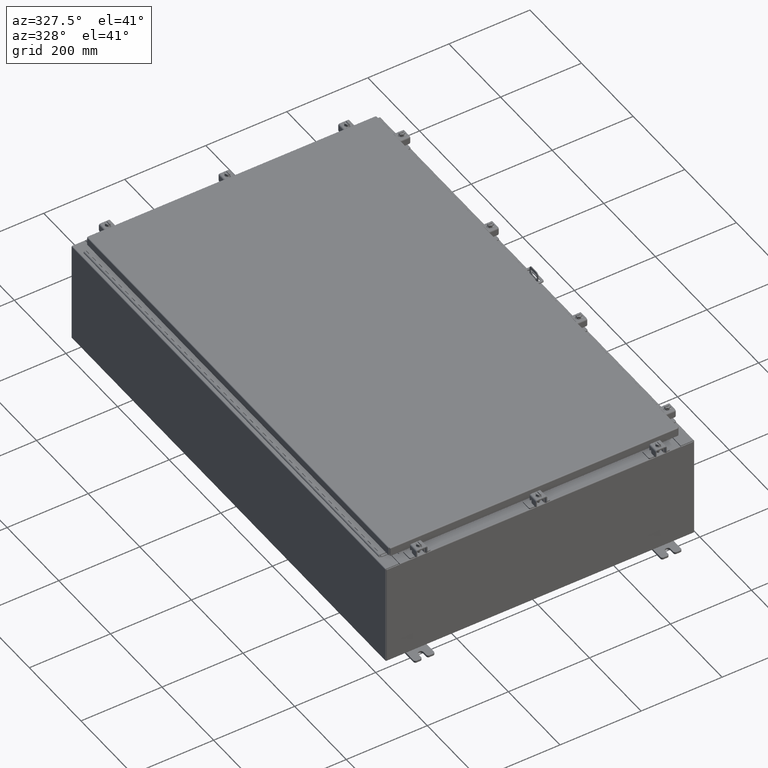
[diagram: clean part render]
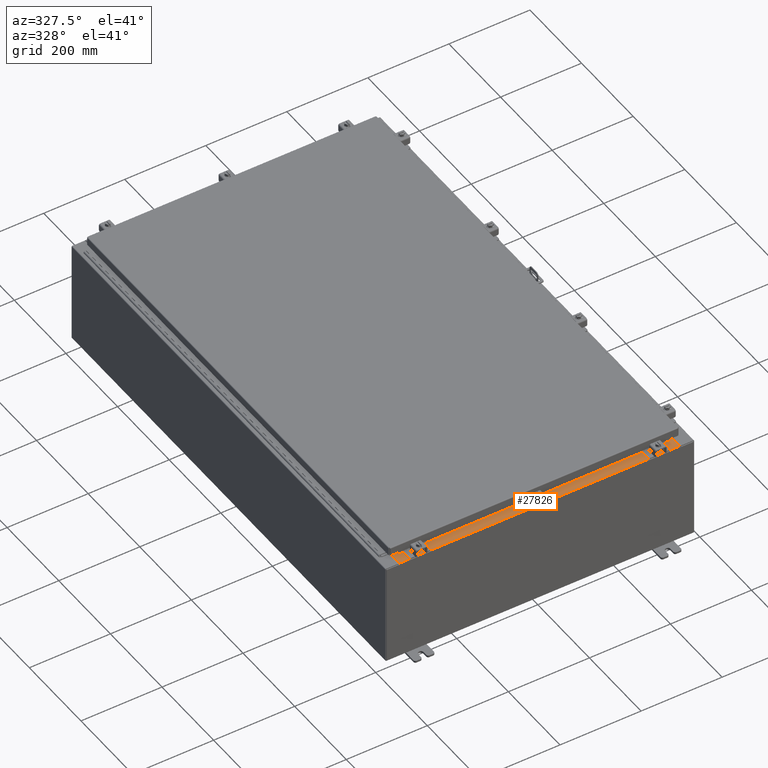
[diagram: same view with one face highlighted and labeled with its STEP entity id]
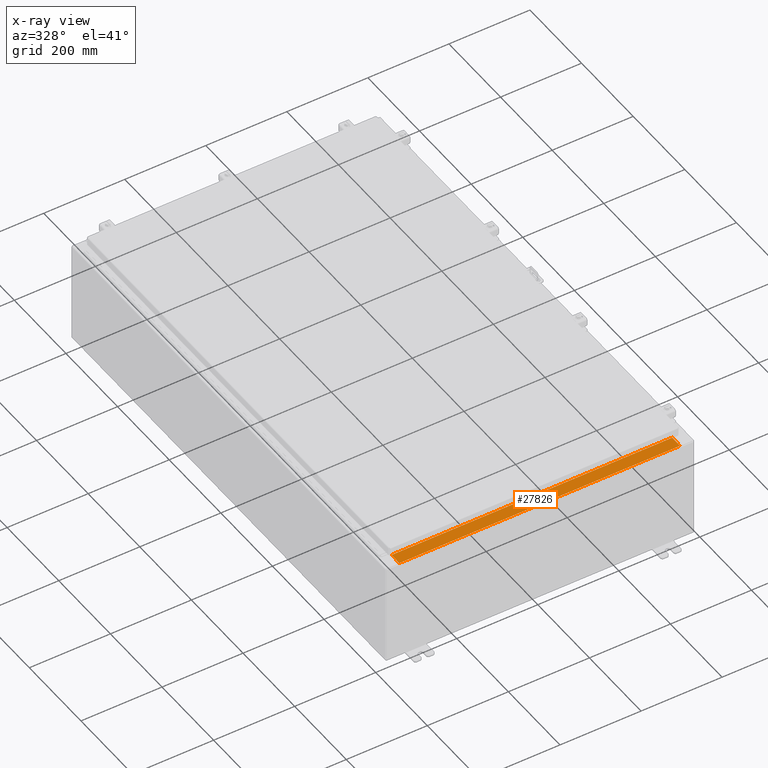
[diagram: x-ray of the same camera — body ghosted, the highlighted face saturated]
A machine part, auxiliary view. The second image highlights one B-rep face of the part: STEP entity #27826.
The next image is the same camera in x-ray: the body ghosted, the highlighted face saturated — about 0% of this face is hidden behind the body in this view.
In plain terms, the highlighted planar face has unit normal (-0, -0, 1).
Its self-contained STEP definition (entity closure, byte-faithful):
#1842 = EDGE_CURVE ( 'NONE', #40998, #15340, #34407, .T. ) ;
#6824 = VECTOR ( 'NONE', #11689, 39.37007874015748100 ) ;
#7242 = VERTEX_POINT ( 'NONE', #12935 ) ;
#9214 = ORIENTED_EDGE ( 'NONE', *, *, #27134, .F. ) ;
#11689 = DIRECTION ( 'NONE',  ( -1.000000000000000000, -3.626514188665738000E-016, -9.992007221626408900E-016 ) ) ;
#11833 = LINE ( 'NONE', #38471, #33440 ) ;
#12935 = CARTESIAN_POINT ( 'NONE',  ( -13.63720000000000400, -0.08770000000000026400, 4.999999999999988500 ) ) ;
#14134 = DIRECTION ( 'NONE',  ( -3.225867722578196700E-016, -1.000000000000000000, 3.767692204910442100E-015 ) ) ;
#15300 = VECTOR ( 'NONE', #33399, 39.37007874015748100 ) ;
#15340 = VERTEX_POINT ( 'NONE', #42845 ) ;
#17595 = LINE ( 'NONE', #40082, #6824 ) ;
#19007 = AXIS2_PLACEMENT_3D ( 'NONE', #24161, #20233, #48677 ) ;
#19821 = ORIENTED_EDGE ( 'NONE', *, *, #30159, .T. ) ;
#20233 = DIRECTION ( 'NONE',  ( 9.992007221626408900E-016, 3.767692204910442100E-015, 1.000000000000000000 ) ) ;
#23601 = VECTOR ( 'NONE', #28491, 39.37007874015748100 ) ;
#24143 = FACE_OUTER_BOUND ( 'NONE', #25317, .T. ) ;
#24161 = CARTESIAN_POINT ( 'NONE',  ( 4.996003611497094000E-015, 1.748382715945128500E-014, 4.999999999999999100 ) ) ;
#25317 = EDGE_LOOP ( 'NONE', ( #9214, #26782, #37244, #19821 ) ) ;
#26782 = ORIENTED_EDGE ( 'NONE', *, *, #1842, .F. ) ;
#27134 = EDGE_CURVE ( 'NONE', #15340, #7242, #34380, .T. ) ;
#27826 = ADVANCED_FACE ( 'NONE', ( #24143 ), #44617, .T. ) ;
#28491 = DIRECTION ( 'NONE',  ( -1.000000000000000000, -3.225867722578232700E-016, -9.992007221626408900E-016 ) ) ;
#29330 = CARTESIAN_POINT ( 'NONE',  ( -13.63720000000000400, -0.07470000000000234800, 4.999999999999988500 ) ) ;
#30159 = EDGE_CURVE ( 'NONE', #39872, #7242, #17595, .T. ) ;
#32565 = CARTESIAN_POINT ( 'NONE',  ( 13.63719999999999800, -1.287299999999999200, 5.000000000000016900 ) ) ;
#33399 = DIRECTION ( 'NONE',  ( 3.225867722578196700E-016, 1.000000000000000000, -3.767692204910442100E-015 ) ) ;
#33440 = VECTOR ( 'NONE', #14134, 39.37007874015748100 ) ;
#34380 = LINE ( 'NONE', #29330, #15300 ) ;
#34407 = LINE ( 'NONE', #32565, #23601 ) ;
#37244 = ORIENTED_EDGE ( 'NONE', *, *, #41244, .F. ) ;
#37887 = CARTESIAN_POINT ( 'NONE',  ( 13.63719999999999800, -0.08770000000000026400, 5.000000000000014200 ) ) ;
#38471 = CARTESIAN_POINT ( 'NONE',  ( 13.63719999999999800, -1.300300000000001300, 5.000000000000018700 ) ) ;
#39872 = VERTEX_POINT ( 'NONE', #37887 ) ;
#40082 = CARTESIAN_POINT ( 'NONE',  ( 4.971226421728438400E-015, -0.08770000000000026400, 4.999999999999999100 ) ) ;
#40998 = VERTEX_POINT ( 'NONE', #48962 ) ;
#41244 = EDGE_CURVE ( 'NONE', #39872, #40998, #11833, .T. ) ;
#42845 = CARTESIAN_POINT ( 'NONE',  ( -13.63720000000000400, -1.287299999999999200, 4.999999999999992900 ) ) ;
#44617 = PLANE ( 'NONE',  #19007 ) ;
#48677 = DIRECTION ( 'NONE',  ( -3.225867722578196200E-016, -1.000000000000000000, 3.767692204910442100E-015 ) ) ;
#48962 = CARTESIAN_POINT ( 'NONE',  ( 13.63719999999999800, -1.287299999999999200, 5.000000000000018700 ) ) ;